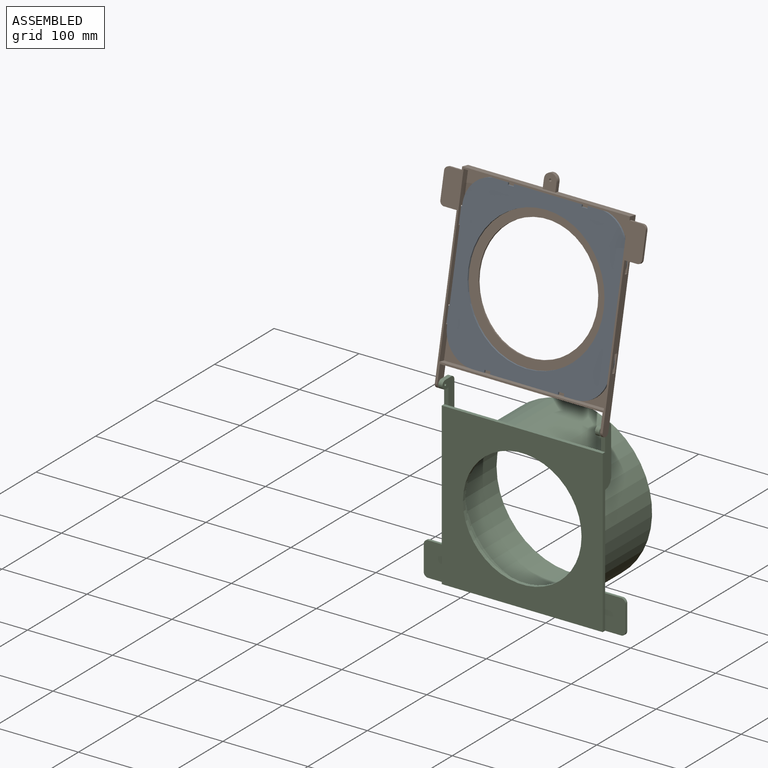
[diagram: assembled view]
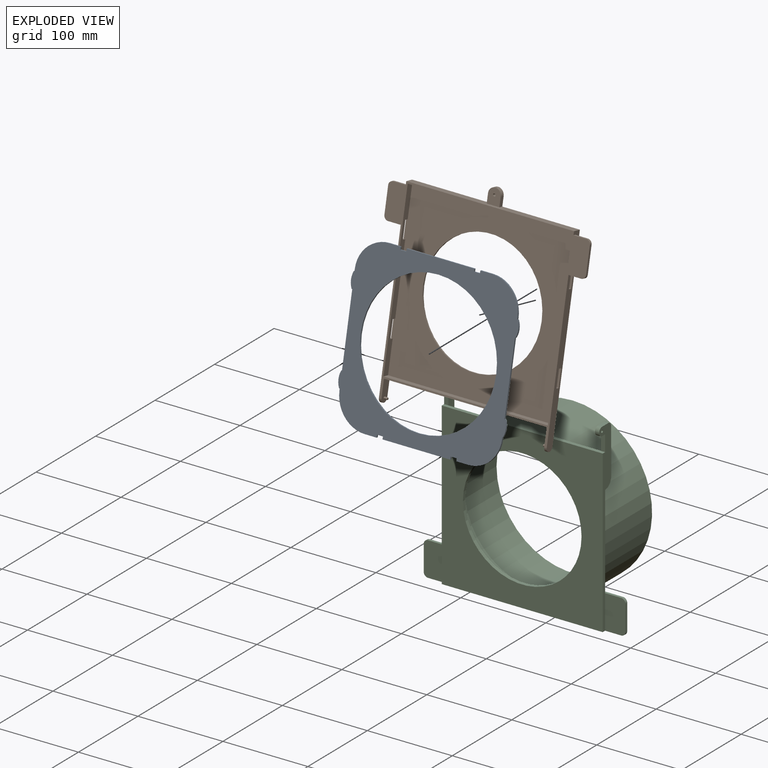
[diagram: exploded view]
GUIDED TOUR — MATED ASSEMBLY (Onshape document 863483285fb1295eeaf9246a, AutoMate assembly 863483285fb1295eeaf9246a_3a57100904c37342fa7821df_b21afdbe006959ffc4f01580_default)

This assembly has 3 components, labeled P0..P2 below (a component is one placed occurrence of a part; the same part can appear more than once), held together by 2 mates. A mate is a constraint between two components; its type names the relative motion it leaves free:
  FASTENED — locks the two components together rigidly (no relative motion),
  REVOLUTE — leaves rotation about the listed axis free (a hinge).
Axis/direction vectors are unit vectors and 'through' points are millimeter coordinates, both in the assembly's world frame.

MATES
  1. FASTENED "Fastened 1": P1 <-> P0, direction (-0.003, -0.978, 0.209) through (-0.85, -11.24, 237.18) mm
  2. REVOLUTE "Revolute 1": P2 <-> P1, axis (1.000, -0.004, 0.000) through (94.01, -39.40, 121.41) mm

ASSEMBLY ORDER
  1. P2 — the base component [order verified]
  2. P1 [order verified]
  3. P0 [order verified]
Order-tag legend:
  [order verified] — this step's position reverses a verified removal order: the component was checked to insert without passing through the ones already placed.

Of the 3 components, 2 carry the full construction recipe — the FeatureScript program that regenerates the part's solid from scratch; the rest are supplied as boundary geometry only.
Each toured component is shown spotlighted twice — in the assembled view, then in the exploded view, where a leader line traces a displaced component back to its assembled socket (saturated green if recipe-attached, orange if geometry-only; every other component desaturated gray) — followed by its recipe or geometry summary and the mates that hold it.
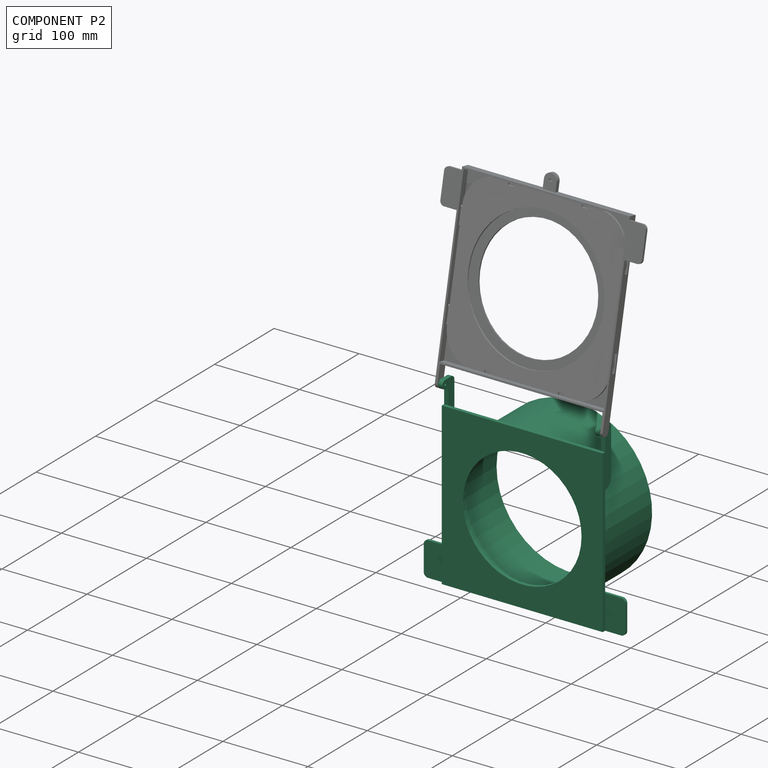
[diagram: component P2 — assembled]
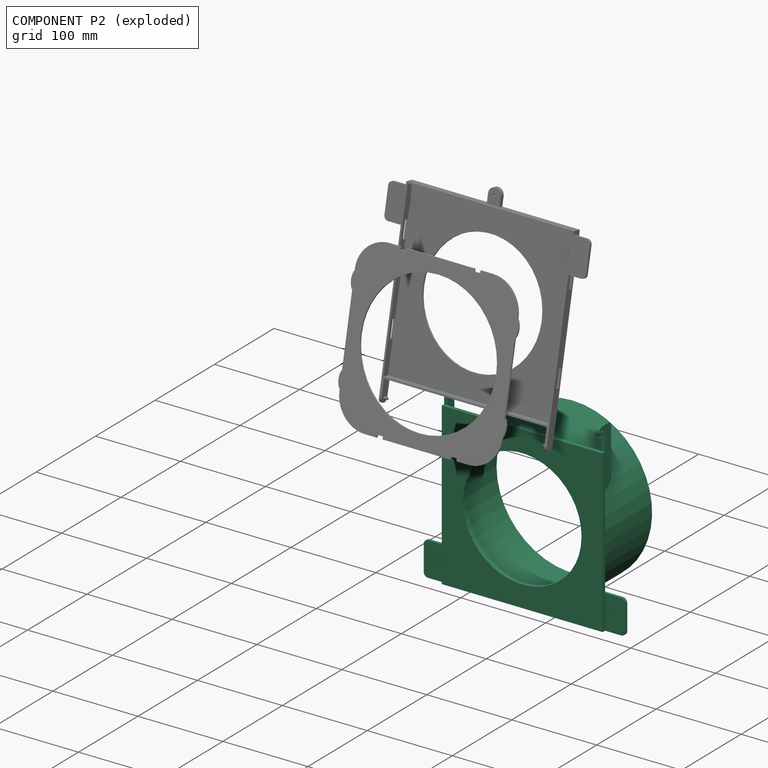
[diagram: component P2 — exploded]
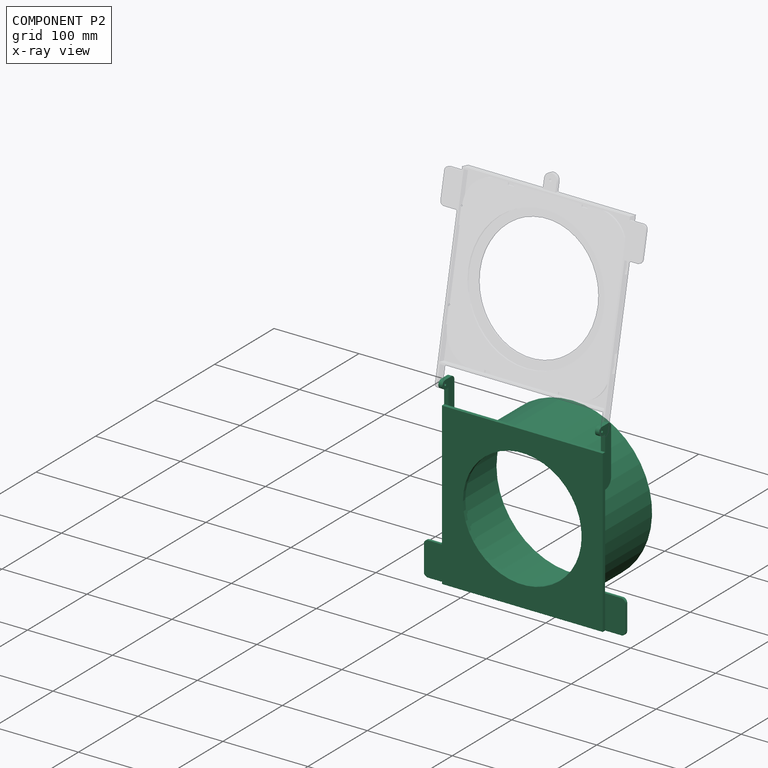
[diagram: component P2 — x-ray view]
COMPONENT P2 — recipe-attached (CADFS 00159515, mesh-verified: the recipe's output STEP matches this component's geometry to below the mesh-comparison resolution (tessellation chordal tolerance ~0.526 mm)).
Held by: REVOLUTE mate "Revolute 1" to P1.
Construction recipe (FeatureScript — the CAD program that rebuilds this solid; sketch coordinates are in the units given by the * unit suffixes, e.g. mm):

FeatureScript 1511;
import(path : "onshape/std/geometry.fs", version : "1511.0");
import(path : "onshape/std/common.fs", version : "1511.0");
const mm = millimeter;
const VERTEX = EntityType.VERTEX;
const EDGE = EntityType.EDGE;
const FACE = EntityType.FACE;
const BODY = EntityType.BODY;
function v(x, y){return vector(x, y);}
function OD(order){return orderDisambiguation(order);}
function OSD(set){return originalSetDisambiguation(set);}
function TD(topology){return topologyDisambiguation(topology);}
function TDD(query){return trueDependencyDisambiguation(query);}
function sQuery(a, b, c) {return sketchEntityQuery(a, b, c);}

annotation { "Feature Type Name" : "Feature", "Feature Type Description" : "" }
export const myFeature = defineFeature(function(context is Context, id is Id, definition is map)
    precondition{}
    {
        {
            var Q0;
            Q0=qCreatedBy(makeId("Top.planeOp"),FACE);
            var sketch = newSketch(context, id + "F0", { "sketchPlane" : qUnion([Q0])});
            skCircle(sketch, "E0", {"center": v(0, 0) * mm, "radius": 94 * mm});
            skCircle(sketch, "E1", {"center": v(0, 0) * mm, "radius": 89.6 * mm});
            skArc(sketch, "E2", {"start": v(7.5, 109.26) * mm, "mid": v(-0.04, 117) * mm, "end": v(-7.5, 109.19) * mm});
            skLineSegment(sketch, "E3", {"start": v(-7.5, 109.19) * mm, "end": v(-7.5, 93.7) * mm});
            skLineSegment(sketch, "E4", {"start": v(7.5, 109.26) * mm, "end": v(7, 93.74) * mm});
            skSolve(sketch);
        }
        {
            var Q0;
            Q0=makeQuery(id+"F0.imprint","IMPRINT",FACE,{"disambiguationData":[TD([[makeQuery(id+"F0.imprint","IMPRINT",EDGE,{"derivedFrom":sQuery(id+"F0.wireOp",EDGE,"E0")}),1.0]])]});
            extrude(context, id + "F1", {"entities" : qUnion([Q0]), "depth" : 60 * mm});
        }
        {
            var Q0;
            Q0=makeQuery(id+"F1.opExtrude","CAP_FACE",FACE,{"disambiguationData":[OSD([sQuery(id+"F0.wireOp",EDGE,"E0"),sQuery(id+"F0.wireOp",EDGE,"E1")])],"isStart":false});
            var sketch = newSketch(context, id + "F2", { "sketchPlane" : qUnion([Q0])});
            skCircle(sketch, "E5", {"center": v(0, 0) * mm, "radius": 94 * mm});
            skCircle(sketch, "E6", {"center": v(0, 0) * mm, "radius": 85 * mm});
            skSolve(sketch);
        }
        {
            var Q0;
            Q0=makeQuery(id+"F2.imprint","IMPRINT",FACE,{"disambiguationData":[TD([[makeQuery(id+"F2.imprint","IMPRINT",EDGE,{"derivedFrom":sQuery(id+"F2.wireOp",EDGE,"E6")}),-1.0]])]});
            var Q1;
            Q1=makeQuery(id+"F2.imprint","IMPRINT",FACE,{"disambiguationData":[TD([[makeQuery(id+"F2.imprint","IMPRINT",EDGE,{"derivedFrom":sQuery(id+"F2.wireOp",EDGE,"E5")}),1.0]])]});
            extrude(context, id + "F3", {"entities" : qUnion([Q0, Q1]), "operationType" : NewBodyOperationType.ADD, "depth" : 10 * mm});
        }
        {
            var Q0;
            Q0=makeQuery(id+"F3.opExtrude","CAP_FACE",FACE,{"disambiguationData":[OSD([sQuery(id+"F2.wireOp",EDGE,"E5"),sQuery(id+"F2.wireOp",EDGE,"E6")])],"isStart":false});
            var sketch = newSketch(context, id + "F4", { "sketchPlane" : qUnion([Q0])});
            skCircle(sketch, "E7", {"center": v(0, 0) * mm, "radius": 94 * mm});
            skCircle(sketch, "E8", {"center": v(0, 0) * mm, "radius": 89.6 * mm});
            skSolve(sketch);
        }
        {
            var Q0;
            Q0=makeQuery(id+"F4.imprint","IMPRINT",FACE,{"disambiguationData":[TD([[makeQuery(id+"F4.imprint","IMPRINT",EDGE,{"derivedFrom":sQuery(id+"F4.wireOp",EDGE,"E7")}),1.0]])]});
            extrude(context, id + "F5", {"entities" : qUnion([Q0]), "operationType" : NewBodyOperationType.ADD, "depth" : 10 * mm});
        }
        {
            var Q0;
            Q0=makeQuery(id+"F5.opExtrude","CAP_FACE",FACE,{"disambiguationData":[OSD([sQuery(id+"F4.wireOp",EDGE,"E7"),sQuery(id+"F4.wireOp",EDGE,"E8")])],"isStart":false});
            var sketch = newSketch(context, id + "F6", { "sketchPlane" : qUnion([Q0])});
            skLineSegment(sketch, "E9.bottom", {"start": v(95, -95) * mm, "end": v(-95, -95) * mm});
            skLineSegment(sketch, "E9.top", {"start": v(95, 95) * mm, "end": v(-95, 95) * mm});
            skLineSegment(sketch, "E9.left", {"start": v(95, -95) * mm, "end": v(95, 95) * mm});
            skLineSegment(sketch, "E9.right", {"start": v(-95, -95) * mm, "end": v(-95, 95) * mm});
            skPoint(sketch, "E9.middle", {"position": v(0, 0) * mm});
            skCircle(sketch, "E10", {"center": v(0, 0) * mm, "radius": 70 * mm});
            skSolve(sketch);
        }
        {
            var Q0;
            Q0=makeQuery(id+"F6.imprint","IMPRINT",FACE,{"disambiguationData":[TD([[makeQuery(id+"F6.imprint","IMPRINT",EDGE,{"derivedFrom":sQuery(id+"F6.wireOp",EDGE,"E9.bottom")}),-1.0]])]});
            var Q1;
            Q1=makeQuery(id+"F6.imprint","IMPRINT",FACE,{"disambiguationData":[TD([[makeQuery(id+"F6.imprint","IMPRINT",EDGE,{"derivedFrom":sQuery(id+"F6.wireOp",EDGE,"E10")}),-1.0]])]});
            var Q2;
            Q2=makeQuery(id+"F6.imprint","IMPRINT",FACE,{"disambiguationData":[TD([[makeQuery(id+"F6.imprint","IMPRINT",EDGE,{"derivedFrom":makeQuery(id+"F5.opExtrude","CAP_EDGE",EDGE,{"disambiguationData":[OSD([sQuery(id+"F4.wireOp",EDGE,"E7")])],"isStart":false})}),1.0]])]});
            extrude(context, id + "F7", {"entities" : qUnion([Q0, Q1, Q2]), "operationType" : NewBodyOperationType.ADD, "depth" : 4 * mm});
        }
        {
            var Q0;
            Q0=makeQuery(id+"F0.imprint","IMPRINT",FACE,{"disambiguationData":[TD([[makeQuery(id+"F0.imprint","IMPRINT",EDGE,{"derivedFrom":sQuery(id+"F0.wireOp",EDGE,"E2")}),1.0]])]});
            extrude(context, id + "F8", {"entities" : qUnion([Q0]), "operationType" : NewBodyOperationType.ADD, "depth" : 5 * mm});
        }
        {
            var Q0;
            Q0=makeQuery(id+"F8.opExtrude","CAP_FACE",FACE,{"disambiguationData":[OSD([sQuery(id+"F0.wireOp",EDGE,"E0"),sQuery(id+"F0.wireOp",EDGE,"E2"),sQuery(id+"F0.wireOp",EDGE,"E3"),sQuery(id+"F0.wireOp",EDGE,"E4")])],"isStart":false});
            var sketch = newSketch(context, id + "F9", { "sketchPlane" : qUnion([Q0])});
            skCircle(sketch, "E11", {"center": v(0, 109.19) * mm, "radius": 2.5 * mm});
            skSolve(sketch);
        }
        {
            var Q0;
            Q0=makeQuery(id+"F9.imprint","IMPRINT",FACE,{"disambiguationData":[TD([[makeQuery(id+"F9.imprint","IMPRINT",EDGE,{"derivedFrom":sQuery(id+"F9.wireOp",EDGE,"E11")}),1.0]])]});
            extrude(context, id + "F10", {"entities" : qUnion([Q0]), "operationType" : NewBodyOperationType.REMOVE, "oppositeDirection" : true, "depth" : 3 * mm});
        }
        {
            var Q0;
            Q0=makeQuery(id+"F3.opExtrude","CAP_EDGE",EDGE,{"disambiguationData":[OSD([sQuery(id+"F2.wireOp",EDGE,"E6")])],"isStart":false});
            chamfer(context, id + "F11", {"entities" : qUnion([Q0]), "width" : 5 * mm, "tangentPropagation" : true});
        }
        {
            var Q0;
            {var subQ0=sQuery(id+"F6.wireOp",EDGE,"E9.bottom");var subQ1=sQuery(id+"F6.wireOp",EDGE,"E9.top");var subQ2=sQuery(id+"F6.wireOp",EDGE,"E9.left");var subQ3=sQuery(id+"F6.wireOp",EDGE,"E9.right");Q0=makeQuery(id+"F7.boolean.opBoolean","SPLIT",FACE,{"disambiguationData":[TD([makeQuery(id+"F1.opExtrude","SWEPT_FACE",FACE,{"disambiguationData":[OSD([sQuery(id+"F0.wireOp",EDGE,"E0")])]})])],"derivedFrom":makeQuery(id+"F7.opExtrude","CAP_FACE",FACE,{"disambiguationData":[OSD([subQ0,subQ1,subQ2,subQ3,sQuery(id+"F6.wireOp",EDGE,"E10")])],"isStart":true})});}
            var sketch = newSketch(context, id + "F12", { "sketchPlane" : qUnion([Q0])});
            skLineSegment(sketch, "E12.bottom", {"start": v(95, -95) * mm, "end": v(114, -95) * mm});
            skLineSegment(sketch, "E12.top", {"start": v(95, -55) * mm, "end": v(114, -55) * mm});
            skLineSegment(sketch, "E12.right", {"start": v(119, -90) * mm, "end": v(119, -60) * mm});
            skPoint(sketch, "E13.visualSharp", {"position": v(119, -95) * mm});
            skArc(sketch, "E13.filletArc", {"start": v(114, -95) * mm, "mid": v(117.54, -93.54) * mm, "end": v(119, -90) * mm});
            skPoint(sketch, "E14.visualSharp", {"position": v(119, -55) * mm});
            skArc(sketch, "E14.filletArc", {"start": v(119, -60) * mm, "mid": v(117.54, -56.46) * mm, "end": v(114, -55) * mm});
            skLineSegment(sketch, "E15.bottom", {"start": v(95, -95) * mm, "end": v(78.59, -95) * mm});
            skLineSegment(sketch, "E15.top", {"start": v(95, -55) * mm, "end": v(73.59, -55) * mm});
            skLineSegment(sketch, "E15.right", {"start": v(73.59, -90) * mm, "end": v(73.59, -55) * mm});
            skPoint(sketch, "E16.visualSharp", {"position": v(73.59, -95) * mm});
            skArc(sketch, "E16.filletArc", {"start": v(73.59, -90) * mm, "mid": v(75.05, -93.54) * mm, "end": v(78.59, -95) * mm});
            skLineSegment(sketch, "E17.MirrorCS", {"start": v(-95, -95) * mm, "end": v(-114, -95) * mm});
            skLineSegment(sketch, "E18.MirrorCS", {"start": v(-95, -95) * mm, "end": v(-78.59, -95) * mm});
            skArc(sketch, "E19.MirrorCS", {"start": v(-73.59, -90) * mm, "mid": v(-75.05, -93.54) * mm, "end": v(-78.59, -95) * mm});
            skLineSegment(sketch, "E20.MirrorCS", {"start": v(-73.59, -90) * mm, "end": v(-73.59, -55) * mm});
            skLineSegment(sketch, "E21.MirrorCS", {"start": v(-95, -55) * mm, "end": v(-73.59, -55) * mm});
            skLineSegment(sketch, "E22.MirrorCS", {"start": v(-95, -55) * mm, "end": v(-114, -55) * mm});
            skArc(sketch, "E23.MirrorCS", {"start": v(-119, -60) * mm, "mid": v(-117.54, -56.46) * mm, "end": v(-114, -55) * mm});
            skLineSegment(sketch, "E24.MirrorCS", {"start": v(-119, -90) * mm, "end": v(-119, -60) * mm});
            skArc(sketch, "E25.MirrorCS", {"start": v(-114, -95) * mm, "mid": v(-117.54, -93.54) * mm, "end": v(-119, -90) * mm});
            skSolve(sketch);
        }
        {
            var Q0;
            {var subQ1=sQuery(id+"F12.wireOp",EDGE,"E12.bottom");Q0=makeQuery(id+"F12.imprint","IMPRINT",FACE,{"disambiguationData":[TD([[makeQuery(id+"F12.imprint","IMPRINT",EDGE,{"derivedFrom":subQ1}),1.0]])]});}
            var Q1;
            {var subQ8=sQuery(id+"F12.wireOp",EDGE,"E15.bottom");Q1=makeQuery(id+"F12.imprint","IMPRINT",FACE,{"disambiguationData":[TD([[makeQuery(id+"F12.imprint","IMPRINT",EDGE,{"derivedFrom":subQ8}),-1.0]])]});}
            var Q2;
            {var subQ8=sQuery(id+"F12.wireOp",EDGE,"E18.MirrorCS");Q2=makeQuery(id+"F12.imprint","IMPRINT",FACE,{"disambiguationData":[TD([[makeQuery(id+"F12.imprint","IMPRINT",EDGE,{"derivedFrom":subQ8}),-1.0]])]});}
            var Q3;
            {var subQ1=sQuery(id+"F12.wireOp",EDGE,"E17.MirrorCS");Q3=makeQuery(id+"F12.imprint","IMPRINT",FACE,{"disambiguationData":[TD([[makeQuery(id+"F12.imprint","IMPRINT",EDGE,{"derivedFrom":subQ1}),-1.0]])]});}
            extrude(context, id + "F13", {"entities" : qUnion([Q0, Q1, Q2, Q3]), "operationType" : NewBodyOperationType.ADD, "depth" : 3 * mm});
        }
        {
            var Q0;
            {var subQ0=sQuery(id+"F6.wireOp",EDGE,"E9.bottom");var subQ1=makeQuery(id+"F7.opExtrude","SWEPT_FACE",FACE,{"disambiguationData":[OSD([subQ0])]});var subQ9=makeQuery(id+"F1.opExtrude","SWEPT_FACE",FACE,{"disambiguationData":[OSD([sQuery(id+"F0.wireOp",EDGE,"E0")])]});var subQ10=sQuery(id+"F6.wireOp",EDGE,"E9.left");var subQ12=sQuery(id+"F6.wireOp",EDGE,"E9.right");var subQ14=sQuery(id+"F6.wireOp",EDGE,"E9.top");Q0=makeQuery(id+"F13.boolean.opBoolean","SPLIT",FACE,{"disambiguationData":[TD([subQ1])],"derivedFrom":makeQuery(id+"F7.boolean.opBoolean","SPLIT",FACE,{"disambiguationData":[TD([subQ9])],"derivedFrom":makeQuery(id+"F7.opExtrude","CAP_FACE",FACE,{"disambiguationData":[OSD([subQ0,subQ14,subQ10,subQ12,sQuery(id+"F6.wireOp",EDGE,"E10")])],"isStart":true})})});}
            var sketch = newSketch(context, id + "F14", { "sketchPlane" : qUnion([Q0])});
            skLineSegment(sketch, "E26.bottom", {"start": v(-95, 95) * mm, "end": v(-90, 95) * mm});
            skLineSegment(sketch, "E26.top", {"start": v(-95, 119) * mm, "end": v(-90, 119) * mm});
            skLineSegment(sketch, "E26.left", {"start": v(-95, 95) * mm, "end": v(-95, 119) * mm});
            skLineSegment(sketch, "E26.right", {"start": v(-90, 95) * mm, "end": v(-90, 119) * mm});
            skLineSegment(sketch, "E27.top", {"start": v(-95, 55) * mm, "end": v(-90, 55) * mm});
            skLineSegment(sketch, "E27.left", {"start": v(-95, 95) * mm, "end": v(-95, 55) * mm});
            skLineSegment(sketch, "E27.right", {"start": v(-90, 95) * mm, "end": v(-90, 55) * mm});
            skLineSegment(sketch, "E28.top", {"start": v(-95, 124) * mm, "end": v(-90, 124) * mm});
            skLineSegment(sketch, "E28.left", {"start": v(-95, 119) * mm, "end": v(-95, 124) * mm});
            skLineSegment(sketch, "E28.right", {"start": v(-90, 119) * mm, "end": v(-90, 124) * mm});
            skSolve(sketch);
        }
        {
            var Q0;
            Q0 = qSketchRegion(id + "F14", true);
            extrude(context, id + "F15", {"entities" : qUnion([Q0]), "operationType" : NewBodyOperationType.ADD, "depth" : 10 * mm});
        }
        {
            var Q0;
            Q0=makeQuery(id+"F15.boolean.opBoolean","MERGE",FACE,{"derivedFrom":[makeQuery(id+"F7.opExtrude","SWEPT_FACE",FACE,{"disambiguationData":[OSD([sQuery(id+"F6.wireOp",EDGE,"E9.right")])]}),makeQuery(id+"F15.opExtrude","SWEPT_FACE",FACE,{"disambiguationData":[OSD([sQuery(id+"F14.wireOp",EDGE,"E26.left"),sQuery(id+"F14.wireOp",EDGE,"E27.left")])]})]});
            var sketch = newSketch(context, id + "F16", { "sketchPlane" : qUnion([Q0])});
            skArc(sketch, "E29", {"start": v(55, 80) * mm, "mid": v(58.27, 72.58) * mm, "end": v(65.95, 70) * mm});
            skSolve(sketch);
        }
        {
            var Q0;
            Q0 = qSketchRegion(id + "F16", true);
            var Q1;
            {var subQ3=sQuery(id+"F6.wireOp",EDGE,"E9.right");var subQ5=sQuery(id+"F14.wireOp",EDGE,"E27.left");var subQ6=makeQuery(id+"F15.opExtrude","SWEPT_EDGE",EDGE,{"disambiguationData":[OSD([subQ3,sQuery(id+"F14.wireOp",EDGE,"E27.top"),subQ5])]});Q1=makeQuery(id+"F16.imprint","IMPRINT",FACE,{"disambiguationData":[TD([[makeQuery(id+"F16.imprint","IMPRINT",EDGE,{"derivedFrom":subQ6}),-1.0]])]});}
            extrude(context, id + "F17", {"entities" : qUnion([Q0, Q1]), "operationType" : NewBodyOperationType.REMOVE, "endBound" : BoundingType.UP_TO_NEXT, "oppositeDirection" : true, "depth" : 25 * mm});
        }
        {
            var Q0;
            Q0=makeQuery(id+"F15.opExtrude","CAP_EDGE",EDGE,{"disambiguationData":[OSD([sQuery(id+"F14.wireOp",EDGE,"E28.top")])],"isStart":false});
            fillet(context, id + "F18", {"entities" : qUnion([Q0]), "radius" : 5 * mm, "tangentPropagation" : true, "allowEdgeOverflow" : false});
        }
        {
            var Q0;
            Q0=makeQuery(id+"F15.boolean.opBoolean","MERGE",FACE,{"derivedFrom":[makeQuery(id+"F7.opExtrude","SWEPT_FACE",FACE,{"disambiguationData":[OSD([sQuery(id+"F6.wireOp",EDGE,"E9.right")])]}),makeQuery(id+"F15.opExtrude","SWEPT_FACE",FACE,{"disambiguationData":[OSD([sQuery(id+"F14.wireOp",EDGE,"E26.left"),sQuery(id+"F14.wireOp",EDGE,"E27.left"),sQuery(id+"F14.wireOp",EDGE,"E28.left")])]})]});
            var sketch = newSketch(context, id + "F19", { "sketchPlane" : qUnion([Q0])});
            skLineSegment(sketch, "E30.bottom", {"start": v(124, 80) * mm, "end": v(114, 80) * mm});
            skLineSegment(sketch, "E30.top", {"start": v(119, 90) * mm, "end": v(119, 90) * mm});
            skLineSegment(sketch, "E30.left", {"start": v(124, 80) * mm, "end": v(124, 85) * mm});
            skLineSegment(sketch, "E30.right", {"start": v(114, 80) * mm, "end": v(114, 85) * mm});
            skPoint(sketch, "E31.visualSharp", {"position": v(124, 90) * mm});
            skArc(sketch, "E31.filletArc", {"start": v(124, 85) * mm, "mid": v(122.54, 88.54) * mm, "end": v(119, 90) * mm});
            skPoint(sketch, "E32.visualSharp", {"position": v(114, 90) * mm});
            skArc(sketch, "E32.filletArc", {"start": v(119, 90) * mm, "mid": v(115.46, 88.54) * mm, "end": v(114, 85) * mm});
            skSolve(sketch);
        }
        {
            var Q0;
            Q0=makeQuery(id+"F19.imprint","IMPRINT",FACE,{"disambiguationData":[TD([[makeQuery(id+"F19.imprint","IMPRINT",EDGE,{"derivedFrom":sQuery(id+"F19.wireOp",EDGE,"E30.bottom")}),1.0]])]});
            extrude(context, id + "F20", {"entities" : qUnion([Q0]), "operationType" : NewBodyOperationType.ADD, "oppositeDirection" : true, "depth" : 5 * mm});
        }
        {
            var Q0;
            Q0=makeQuery(id+"F20.boolean.opBoolean","MERGE",FACE,{"derivedFrom":[makeQuery(id+"F15.boolean.opBoolean","MERGE",FACE,{"derivedFrom":[makeQuery(id+"F7.opExtrude","SWEPT_FACE",FACE,{"disambiguationData":[OSD([sQuery(id+"F6.wireOp",EDGE,"E9.right")])]}),makeQuery(id+"F15.opExtrude","SWEPT_FACE",FACE,{"disambiguationData":[OSD([sQuery(id+"F14.wireOp",EDGE,"E26.left"),sQuery(id+"F14.wireOp",EDGE,"E27.left"),sQuery(id+"F14.wireOp",EDGE,"E28.left")])]})]}),makeQuery(id+"F20.opExtrude","CAP_FACE",FACE,{"disambiguationData":[OSD([sQuery(id+"F19.wireOp",EDGE,"E30.bottom"),sQuery(id+"F19.wireOp",EDGE,"E30.left"),sQuery(id+"F19.wireOp",EDGE,"E30.right"),sQuery(id+"F19.wireOp",EDGE,"E31.filletArc"),sQuery(id+"F19.wireOp",EDGE,"E32.filletArc")])],"isStart":true})]});
            var sketch = newSketch(context, id + "F21", { "sketchPlane" : qUnion([Q0])});
            skCircle(sketch, "E33", {"center": v(119, 85) * mm, "radius": 1.5 * mm});
            skSolve(sketch);
        }
        {
            var Q0;
            Q0=makeQuery(id+"F21.imprint","IMPRINT",FACE,{"disambiguationData":[TD([[makeQuery(id+"F21.imprint","IMPRINT",EDGE,{"derivedFrom":sQuery(id+"F21.wireOp",EDGE,"E33")}),1.0]])]});
            extrude(context, id + "F22", {"entities" : qUnion([Q0]), "operationType" : NewBodyOperationType.REMOVE, "endBound" : BoundingType.UP_TO_NEXT, "oppositeDirection" : true, "depth" : 25 * mm});
        }
        {
            var Q0;
            Q0=makeQuery(id+"F7.opExtrude","SWEPT_FACE",FACE,{"disambiguationData":[OSD([sQuery(id+"F6.wireOp",EDGE,"E9.left")])]});
            var sketch = newSketch(context, id + "F23", { "sketchPlane" : qUnion([Q0])});
            skLineSegment(sketch, "E34.0.0", {"start": v(-124, 85) * mm, "end": v(-124, 75) * mm});
            skArc(sketch, "E34.0.1", {"start": v(-124, 75) * mm, "mid": v(-122.54, 71.46) * mm, "end": v(-119, 70) * mm});
            skLineSegment(sketch, "E34.0.2", {"start": v(-119, 70) * mm, "end": v(-64.13, 70) * mm});
            skArc(sketch, "E34.0.3", {"start": v(-64.13, 70) * mm, "mid": v(-57.63, 73.23) * mm, "end": v(-55, 80) * mm});
            skLineSegment(sketch, "E34.0.4", {"start": v(-55, 80) * mm, "end": v(-95, 80) * mm});
            skLineSegment(sketch, "E34.0.5", {"start": v(-95, 80) * mm, "end": v(-114, 80) * mm});
            skLineSegment(sketch, "E34.0.6", {"start": v(-114, 80) * mm, "end": v(-114, 85) * mm});
            skArc(sketch, "E34.0.7", {"start": v(-114, 85) * mm, "mid": v(-119, 90) * mm, "end": v(-124, 85) * mm});
            skCircle(sketch, "E35.0", {"center": v(-119, 85) * mm, "radius": 1.5 * mm});
            skSolve(sketch);
        }
        {
            var Q0;
            Q0=makeQuery(id+"F23.imprint","IMPRINT",FACE,{"disambiguationData":[TD([[makeQuery(id+"F23.imprint","IMPRINT",EDGE,{"derivedFrom":sQuery(id+"F23.wireOp",EDGE,"E34.0.0")}),1.0]])]});
            extrude(context, id + "F24", {"entities" : qUnion([Q0]), "operationType" : NewBodyOperationType.ADD, "oppositeDirection" : true, "depth" : 5 * mm});
        }
    });
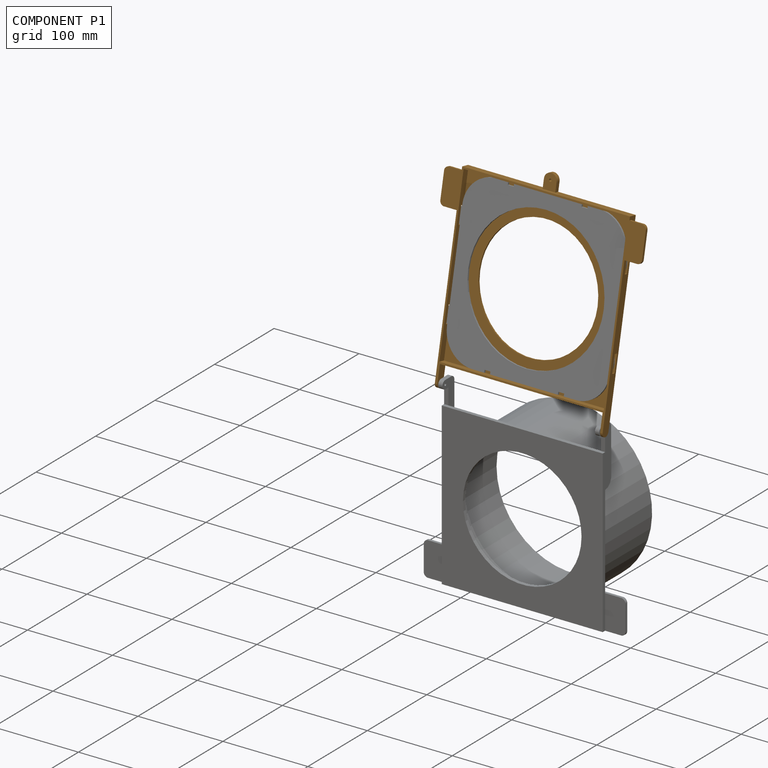
[diagram: component P1 — assembled]
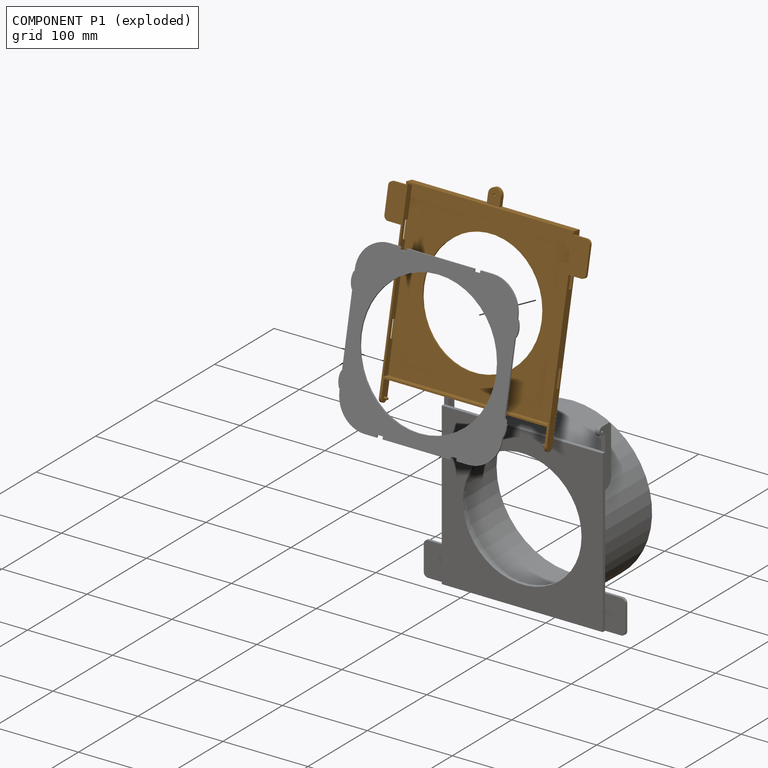
[diagram: component P1 — exploded]
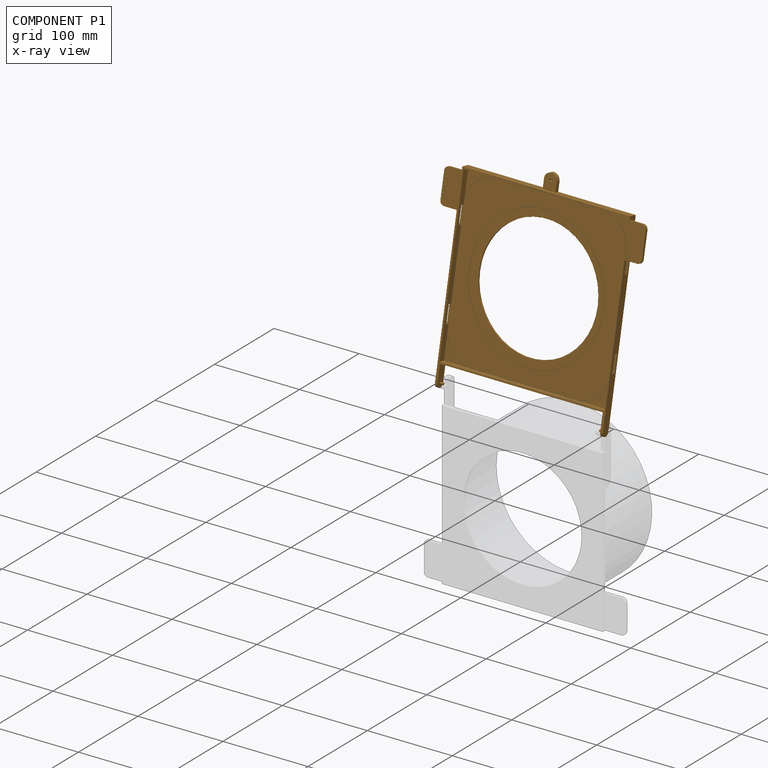
[diagram: component P1 — x-ray view]
COMPONENT P1 — geometry summary (no construction recipe available for this part):
  bounding box: 241.0 x 238.0 x 10.0 mm
  B-rep topology: 1 solid, 49 faces, 288 edges
  volume: 66929 mm^3 (12% of its bounding box)
  symmetry: mirror-symmetric across its x mid-plane
Held by: FASTENED mate "Fastened 1" to P0; REVOLUTE mate "Revolute 1" to P2.
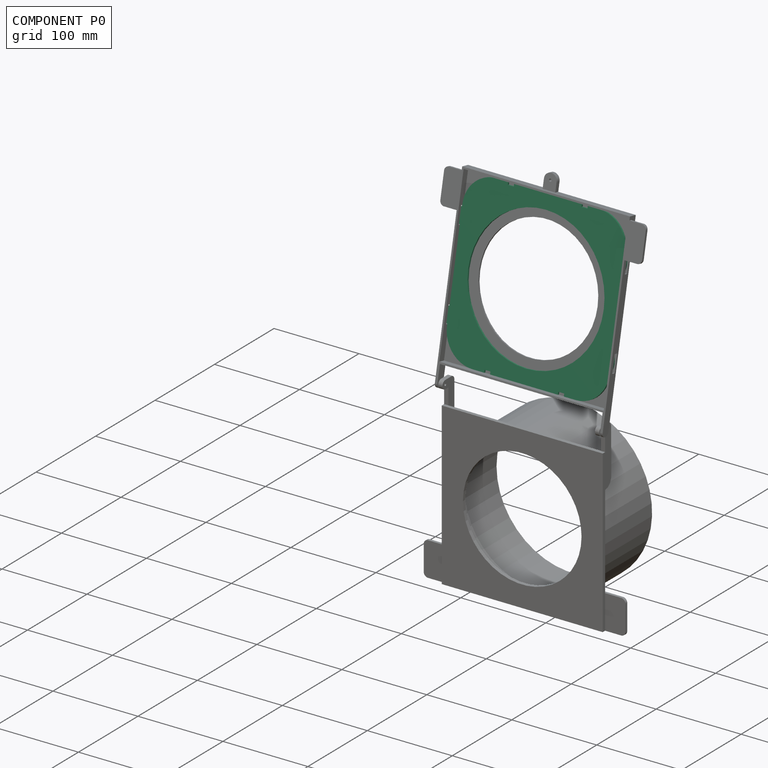
[diagram: component P0 — assembled]
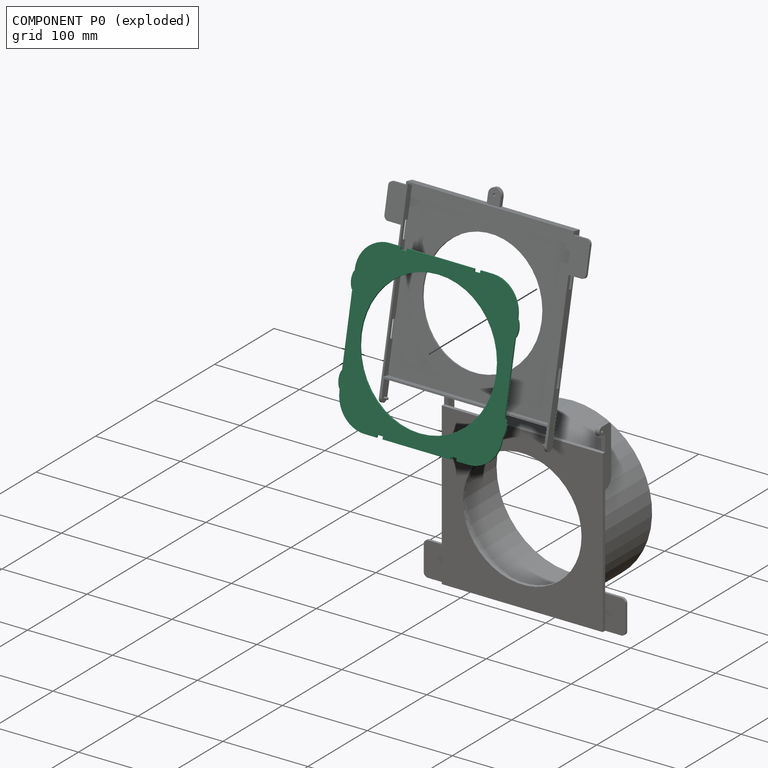
[diagram: component P0 — exploded]
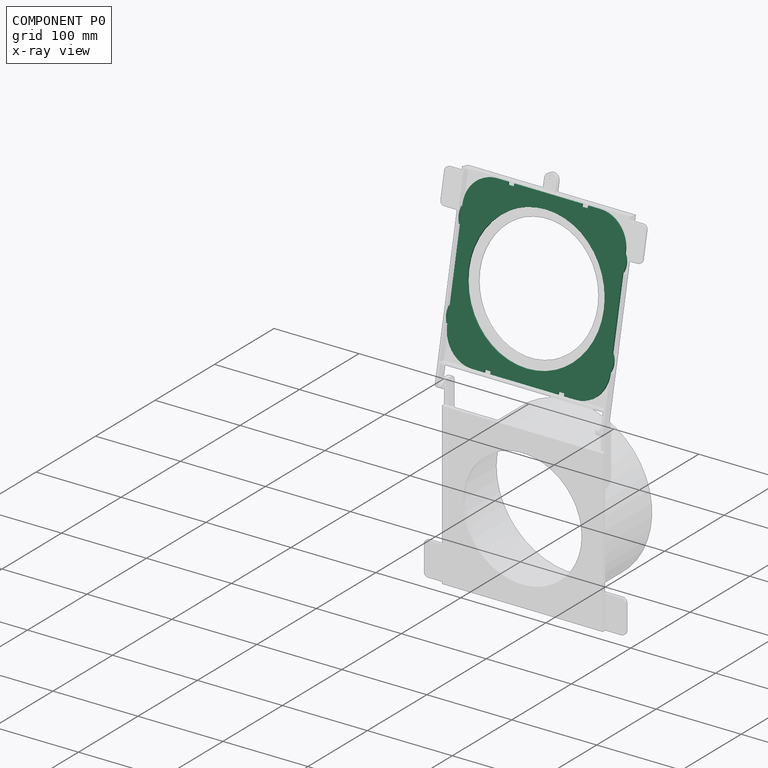
[diagram: component P0 — x-ray view]
COMPONENT P0 — recipe-attached (CADFS 00159517, mesh-verified: the recipe's output STEP matches this component's geometry to below the mesh-comparison resolution (tessellation chordal tolerance ~0.413 mm)).
Held by: FASTENED mate "Fastened 1" to P1.
Construction recipe (FeatureScript — the CAD program that rebuilds this solid; sketch coordinates are in the units given by the * unit suffixes, e.g. mm):

FeatureScript 1511;
import(path : "onshape/std/geometry.fs", version : "1511.0");
import(path : "onshape/std/common.fs", version : "1511.0");
const mm = millimeter;
const VERTEX = EntityType.VERTEX;
const EDGE = EntityType.EDGE;
const FACE = EntityType.FACE;
const BODY = EntityType.BODY;
function v(x, y){return vector(x, y);}
function OD(order){return orderDisambiguation(order);}
function OSD(set){return originalSetDisambiguation(set);}
function TD(topology){return topologyDisambiguation(topology);}
function TDD(query){return trueDependencyDisambiguation(query);}
function sQuery(a, b, c) {return sketchEntityQuery(a, b, c);}

annotation { "Feature Type Name" : "Feature", "Feature Type Description" : "" }
export const myFeature = defineFeature(function(context is Context, id is Id, definition is map)
    precondition{}
    {
        {
            var Q0;
            Q0=qCreatedBy(makeId("Top.planeOp"),FACE);
            var sketch = newSketch(context, id + "F0", { "sketchPlane" : qUnion([Q0])});
            skLineSegment(sketch, "E0.bottom", {"start": v(61, 96) * mm, "end": v(47, 96) * mm});
            skLineSegment(sketch, "E0.top", {"start": v(61, -96) * mm, "end": v(47, -96) * mm});
            skLineSegment(sketch, "E0.left", {"start": v(96, 61) * mm, "end": v(96, 41) * mm});
            skLineSegment(sketch, "E0.right", {"start": v(-96, 61) * mm, "end": v(-96, 41) * mm});
            skPoint(sketch, "E0.middle", {"position": v(0, 0) * mm});
            skCircle(sketch, "E1", {"center": v(0, 0) * mm, "radius": 80 * mm});
            skPoint(sketch, "E2.middle", {"position": v(-96, 0) * mm});
            skLineSegment(sketch, "E3.trimOffspring", {"start": v(-96, -41) * mm, "end": v(-96, -61) * mm});
            skLineSegment(sketch, "E4.trimOffspring", {"start": v(96, -41) * mm, "end": v(96, -61) * mm});
            skLineSegment(sketch, "E5.bottom", {"start": v(-96, 59) * mm, "end": v(-96.8, 59) * mm});
            skLineSegment(sketch, "E5.top", {"start": v(-96, 41) * mm, "end": v(-96.8, 41) * mm});
            skLineSegment(sketch, "E5.left", {"start": v(-96, 59) * mm, "end": v(-96, 41) * mm});
            skLineSegment(sketch, "E5.right", {"start": v(-96.8, 59) * mm, "end": v(-96.8, 41) * mm});
            skPoint(sketch, "E6", {"position": v(-96.8, 50) * mm});
            skLineSegment(sketch, "E7.MirrorCS", {"start": v(-96, -59) * mm, "end": v(-96.8, -59) * mm});
            skLineSegment(sketch, "E8.MirrorCS", {"start": v(-96.8, -59) * mm, "end": v(-96.8, -41) * mm});
            skLineSegment(sketch, "E9.MirrorCS", {"start": v(-96, -41) * mm, "end": v(-96.8, -41) * mm});
            skPoint(sketch, "E10", {"position": v(-96.8, -50) * mm});
            skPoint(sketch, "E11", {"position": v(-98.8, 50) * mm});
            skArc(sketch, "E12", {"start": v(-96.8, 59) * mm, "mid": v(-98.8, 50) * mm, "end": v(-96.8, 41) * mm});
            skArc(sketch, "E13.MirrorCS", {"start": v(-96.8, -59) * mm, "mid": v(-98.8, -50) * mm, "end": v(-96.8, -41) * mm});
            skLineSegment(sketch, "E14.MirrorCS", {"start": v(96, 59) * mm, "end": v(96.8, 59) * mm});
            skArc(sketch, "E15.MirrorCS", {"start": v(96.8, 59) * mm, "mid": v(98.8, 50) * mm, "end": v(96.8, 41) * mm});
            skLineSegment(sketch, "E16.MirrorCS", {"start": v(96, 41) * mm, "end": v(96.8, 41) * mm});
            skLineSegment(sketch, "E17.MirrorCS", {"start": v(96, -41) * mm, "end": v(96.8, -41) * mm});
            skArc(sketch, "E18.MirrorCS", {"start": v(96.8, -59) * mm, "mid": v(98.8, -50) * mm, "end": v(96.8, -41) * mm});
            skLineSegment(sketch, "E19.MirrorCS", {"start": v(96, -59) * mm, "end": v(96.8, -59) * mm});
            skLineSegment(sketch, "E20", {"start": v(-96, 41) * mm, "end": v(-96, -41) * mm});
            skLineSegment(sketch, "E21", {"start": v(96, 41) * mm, "end": v(96, -41) * mm});
            skLineSegment(sketch, "E22.top", {"start": v(-47, 93) * mm, "end": v(-40, 93) * mm});
            skLineSegment(sketch, "E22.left", {"start": v(-47, 96) * mm, "end": v(-47, 93) * mm});
            skLineSegment(sketch, "E22.right", {"start": v(-40, 96) * mm, "end": v(-40, 93) * mm});
            skLineSegment(sketch, "E23.trimOffspring", {"start": v(-47, 96) * mm, "end": v(-61, 96) * mm});
            skLineSegment(sketch, "E24.MirrorCS", {"start": v(47, 96) * mm, "end": v(47, 93) * mm});
            skLineSegment(sketch, "E25.MirrorCS", {"start": v(47, 93) * mm, "end": v(40, 93) * mm});
            skLineSegment(sketch, "E26.MirrorCS", {"start": v(40, 96) * mm, "end": v(40, 93) * mm});
            skLineSegment(sketch, "E27.MirrorCS", {"start": v(-47, -96) * mm, "end": v(-47, -93) * mm});
            skLineSegment(sketch, "E28.MirrorCS", {"start": v(-47, -93) * mm, "end": v(-40, -93) * mm});
            skLineSegment(sketch, "E29.MirrorCS", {"start": v(-40, -96) * mm, "end": v(-40, -93) * mm});
            skLineSegment(sketch, "E30.MirrorCS", {"start": v(40, -96) * mm, "end": v(40, -93) * mm});
            skLineSegment(sketch, "E31.MirrorCS", {"start": v(47, -93) * mm, "end": v(40, -93) * mm});
            skLineSegment(sketch, "E32.MirrorCS", {"start": v(47, -96) * mm, "end": v(47, -93) * mm});
            skLineSegment(sketch, "E33.trimOffspring", {"start": v(40, 96) * mm, "end": v(-40, 96) * mm});
            skLineSegment(sketch, "E34.trimOffspring", {"start": v(-47, -96) * mm, "end": v(-61, -96) * mm});
            skLineSegment(sketch, "E35.trimOffspring", {"start": v(40, -96) * mm, "end": v(-40, -96) * mm});
            skPoint(sketch, "E36.visualSharp", {"position": v(-96, -96) * mm});
            skArc(sketch, "E36.filletArc", {"start": v(-96, -61) * mm, "mid": v(-85.75, -85.75) * mm, "end": v(-61, -96) * mm});
            skPoint(sketch, "E37.visualSharp", {"position": v(96, -96) * mm});
            skArc(sketch, "E37.filletArc", {"start": v(61, -96) * mm, "mid": v(85.75, -85.75) * mm, "end": v(96, -61) * mm});
            skPoint(sketch, "E38.visualSharp", {"position": v(96, 96) * mm});
            skArc(sketch, "E38.filletArc", {"start": v(96, 61) * mm, "mid": v(85.75, 85.75) * mm, "end": v(61, 96) * mm});
            skPoint(sketch, "E39.visualSharp", {"position": v(-96, 96) * mm});
            skArc(sketch, "E39.filletArc", {"start": v(-61, 96) * mm, "mid": v(-85.75, 85.75) * mm, "end": v(-96, 61) * mm});
            skSolve(sketch);
        }
        {
            var Q0;
            Q0 = qSketchRegion(id + "F0", true);
            extrude(context, id + "F1", {"entities" : qUnion([Q0]), "depth" : 2 * mm});
        }
    });
PROVENANCE & LICENSES
Assembly (occurrences, transforms, mates, per-part STEP geometry): AutoMate dataset, Zenodo record 7776208, CC0.
Construction recipes: CADFS (HuggingFace VladPyatov/CADFS, CC-BY-4.0, layered over the ABC dataset), FeatureScript reconstruction programs keyed by ABC model id.
Join: ABC meta listings map ABC model id -> Onshape documentId; within a shared document, parts are matched by geometric signature (bounding-box dims + volume at 0.1% relative tolerance, exact B-rep face/solid counts).
Verification: 2 of this assembly's 3 components carry a recipe attachment, and every attachment is mesh-verified: the CADFS STEP and the AutoMate member STEP were compared as meshes in their shared local frame (symmetric sampled-point-to-mesh distance); worst across the 2 attachments: below the mesh-comparison resolution (tessellation chordal tolerance ~0.526 mm) on a 350 mm part.
Renders: orthographic iso camera (az 35 / el 25); the floor grid conveys scale (grid pitch printed in each image; no ruler). In the exploded view each component is displaced by its stored offset vector: the offsets alone carry the explosion direction (mate normal/axis signs are not orientation cues and do not encode it), and separation distances are assigned per mate-chain, not proportionally to assembly-order depth.
